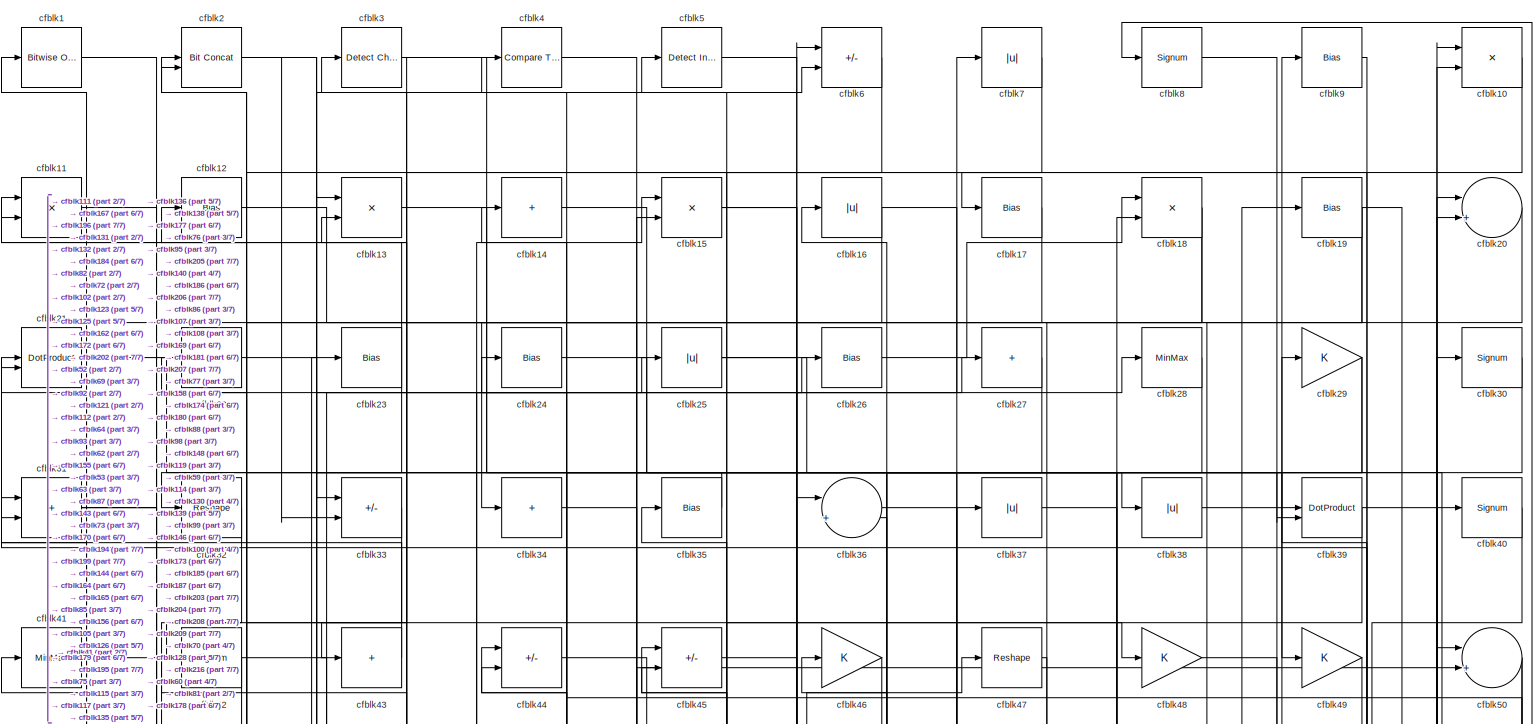
[diagram: root canvas - part 1/7, full width, top band]
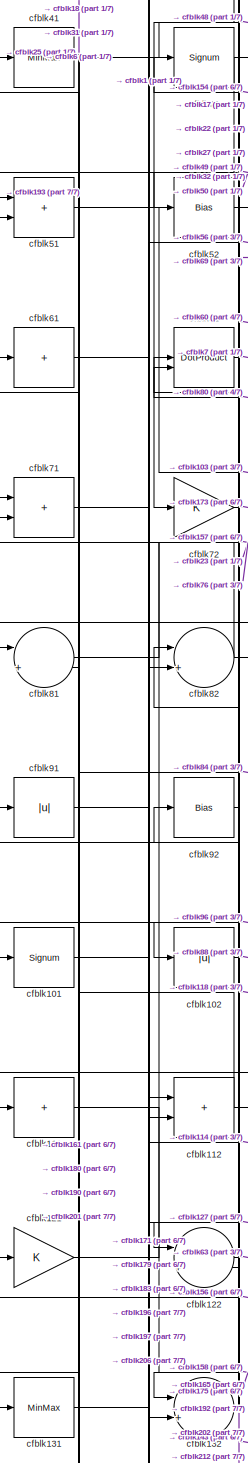
[diagram: root canvas - part 2/7, middle left region]
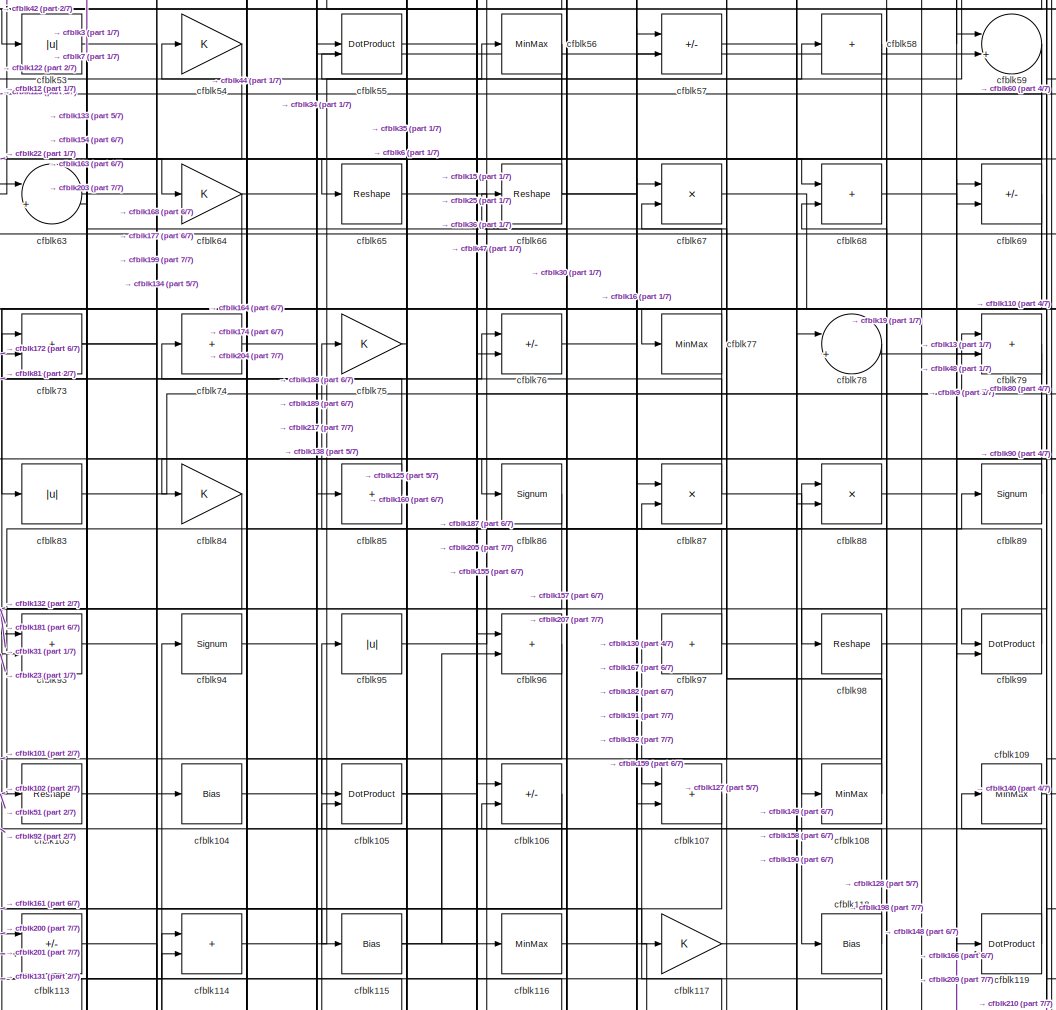
[diagram: root canvas - part 3/7, central region]
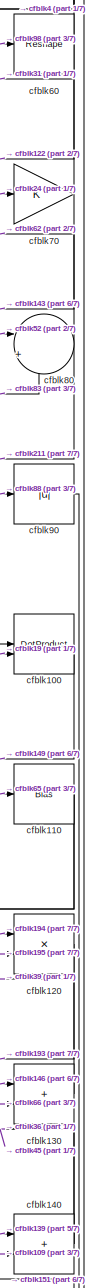
[diagram: root canvas - part 4/7, middle right region]
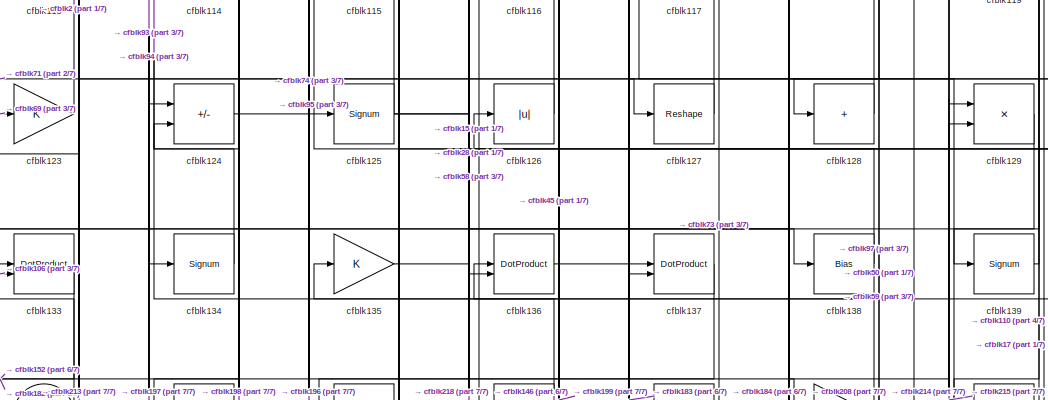
[diagram: root canvas - part 5/7, central region]
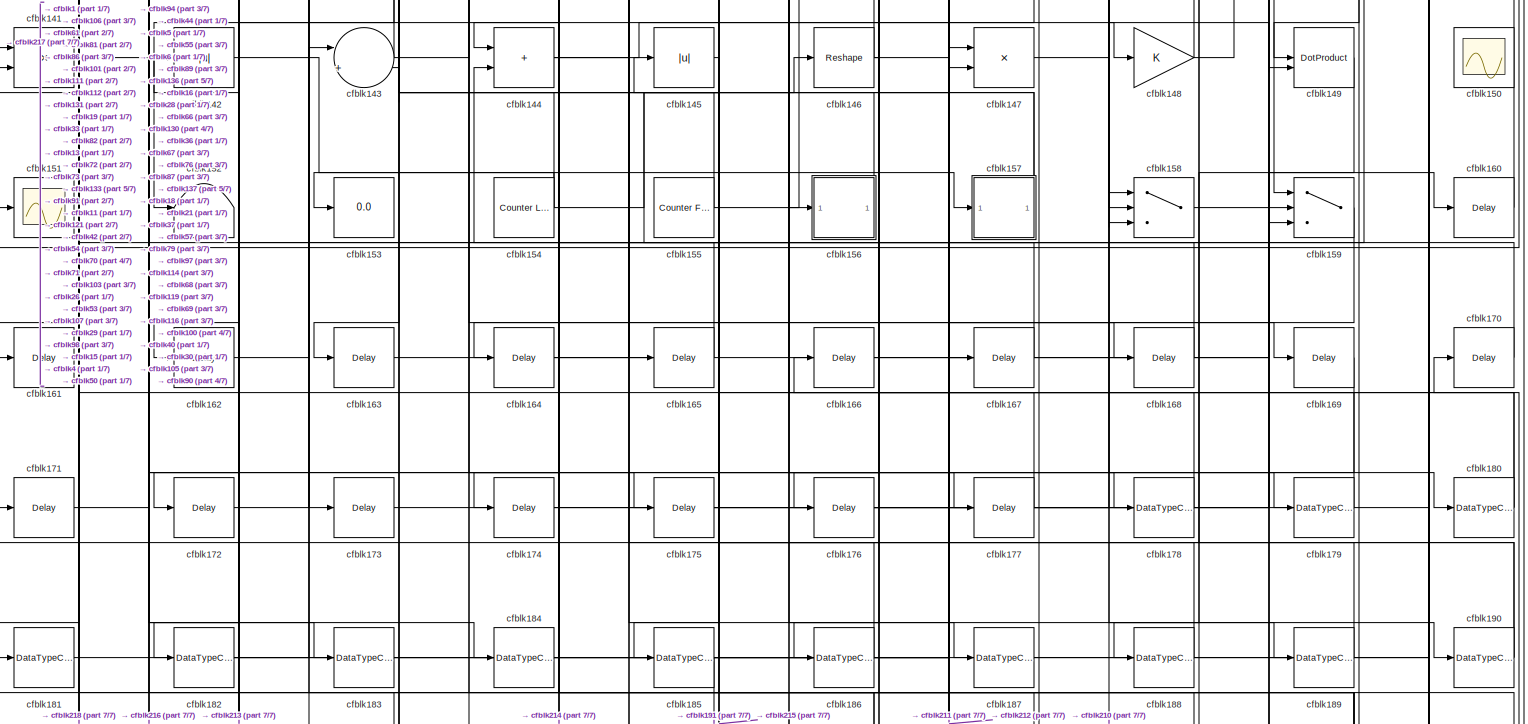
[diagram: root canvas - part 6/7, full width, bottom band]
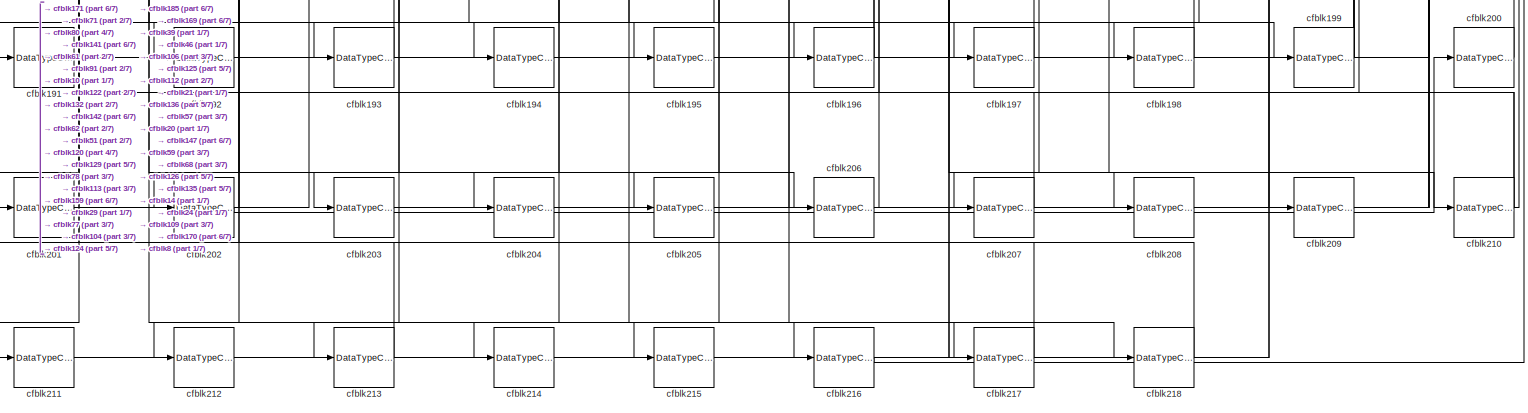
[diagram: root canvas - part 7/7, full width, bottom band]
MODEL slx_f94aa0b53dca
KIND model
CONFIG AbsTol = auto
CONFIG EnableMultiTasking = off
CONFIG FixedStep = auto
CONFIG MaxStep = auto
CONFIG MinStep = auto
CONFIG RelTol = 1e-3
CONFIG SampleTimeConstraint = Unconstrained
CONFIG SolverName = VariableStepAuto
CONFIG StartTime = 0.0
CONFIG StopTime = 10.0
BLOCK [Reference] cfblk1  REF=simulink/Logic and Bit
Operations/Bitwise
Operator
  LibrarySourceBlock = hdlsllib/Logic and Bit\nOperations/Bitwise\nOperator
  SourceBlock = simulink/Logic and Bit\nOperations/Bitwise\nOperator
  SourceType = Bitwise Operator
BLOCK [Product] cfblk10
  Inputs = */
  RndMeth = Zero
  SaturateOnIntegerOverflow = on
BLOCK [DotProduct] cfblk100
  OutDataTypeStr = Inherit: Inherit via internal rule
BLOCK [Signum] cfblk101
BLOCK [Abs] cfblk102
  SaturateOnIntegerOverflow = off
BLOCK [Reshape] cfblk103
BLOCK [Bias] cfblk104
  Bias = 0.0
  SaturateOnIntegerOverflow = off
BLOCK [DotProduct] cfblk105
  OutDataTypeStr = Inherit: Inherit via internal rule
BLOCK [Sum] cfblk106
  IconShape = rectangular
  Inputs = +-
BLOCK [Sum] cfblk107
  IconShape = rectangular
BLOCK [MinMax] cfblk108
BLOCK [MinMax] cfblk109
BLOCK [Product] cfblk11
  Inputs = */
  RndMeth = Zero
  SaturateOnIntegerOverflow = on
BLOCK [Bias] cfblk110
  Bias = 0.0
  SaturateOnIntegerOverflow = off
BLOCK [Sum] cfblk111
  IconShape = rectangular
  Inputs = +
BLOCK [Sum] cfblk112
  IconShape = rectangular
BLOCK [Sum] cfblk113
  IconShape = rectangular
  Inputs = +-
BLOCK [Sum] cfblk114
  IconShape = rectangular
BLOCK [Bias] cfblk115
  Bias = 0.0
  SaturateOnIntegerOverflow = off
BLOCK [MinMax] cfblk116
BLOCK [Gain] cfblk117
BLOCK [Bias] cfblk118
  Bias = 0.0
  SaturateOnIntegerOverflow = off
BLOCK [DotProduct] cfblk119
  OutDataTypeStr = Inherit: Inherit via internal rule
BLOCK [Bias] cfblk12
  Bias = 0.0
  SaturateOnIntegerOverflow = off
BLOCK [Product] cfblk120
  Inputs = */
  RndMeth = Zero
  SaturateOnIntegerOverflow = on
BLOCK [Gain] cfblk121
BLOCK [Sum] cfblk122
  Inputs = |++
BLOCK [Gain] cfblk123
BLOCK [Sum] cfblk124
  IconShape = rectangular
  Inputs = +-
BLOCK [Signum] cfblk125
BLOCK [Abs] cfblk126
  SaturateOnIntegerOverflow = off
BLOCK [Reshape] cfblk127
BLOCK [Sum] cfblk128
  IconShape = rectangular
  Inputs = +
BLOCK [Product] cfblk129
  Inputs = */
  RndMeth = Zero
  SaturateOnIntegerOverflow = on
BLOCK [Product] cfblk13
  Inputs = */
  RndMeth = Zero
  SaturateOnIntegerOverflow = on
BLOCK [Sum] cfblk130
  IconShape = rectangular
BLOCK [MinMax] cfblk131
BLOCK [Sum] cfblk132
  Inputs = |++
BLOCK [DotProduct] cfblk133
  OutDataTypeStr = Inherit: Inherit via internal rule
BLOCK [Signum] cfblk134
BLOCK [Gain] cfblk135
BLOCK [DotProduct] cfblk136
  OutDataTypeStr = Inherit: Inherit via internal rule
BLOCK [DotProduct] cfblk137
  OutDataTypeStr = Inherit: Inherit via internal rule
BLOCK [Bias] cfblk138
  Bias = 0.0
  SaturateOnIntegerOverflow = off
BLOCK [Signum] cfblk139
BLOCK [Sum] cfblk14
  IconShape = rectangular
  Inputs = +
BLOCK [Sum] cfblk140
  IconShape = rectangular
BLOCK [Product] cfblk141
  Inputs = */
  RndMeth = Zero
  SaturateOnIntegerOverflow = on
BLOCK [Abs] cfblk142
  SaturateOnIntegerOverflow = off
BLOCK [Sum] cfblk143
  Inputs = |++
BLOCK [Sum] cfblk144
  IconShape = rectangular
BLOCK [Abs] cfblk145
  SaturateOnIntegerOverflow = off
BLOCK [Reshape] cfblk146
BLOCK [Product] cfblk147
  Inputs = */
  RndMeth = Zero
  SaturateOnIntegerOverflow = on
BLOCK [Gain] cfblk148
BLOCK [DotProduct] cfblk149
  OutDataTypeStr = Inherit: Inherit via internal rule
BLOCK [Product] cfblk15
  Inputs = */
  RndMeth = Zero
  SaturateOnIntegerOverflow = on
BLOCK [Scope] cfblk150
  Floating = on
  NumInputPorts = 1
  ScopeSpecificationString = Simulink.scopes.TimeScopeBlockCfg('CurrentConfiguration', extmgr.ConfigurationSet(extmgr.Configuration('Core','General UI',true,'FigureColor',[0.156862745098039 0.156862745098039 0.156862745098039]),extmgr.Configuration('Core','Source UI',true),extmgr.Configuration('Sources','WiredSimulink',true,'DataLoggingVariableName','ScopeData1','DataLoggingSaveFormat','StructureWithTime','DataLoggingLimitDat...<+2713ch>
BLOCK [Scope] cfblk151
  Floating = off
  NumInputPorts = 1
  ScopeSpecificationString = Simulink.scopes.TimeScopeBlockCfg('CurrentConfiguration', extmgr.ConfigurationSet(extmgr.Configuration('Core','General UI',true),extmgr.Configuration('Core','Source UI',true),extmgr.Configuration('Sources','WiredSimulink',true,'DataLoggingVariableName','ScopeData2','DataLoggingSaveFormat','Array','DataLoggingLimitDataPoints',true,'DataLoggingDecimation','1'),extmgr.Configuration('Visuals','Time Do...<+868ch>
BLOCK [Terminator] cfblk152
BLOCK [Display] cfblk153
  Decimation = 1
BLOCK [Reference] cfblk154  REF=hdlsllib/Sources/Counter
Limited
  SourceBlock = hdlsllib/Sources/Counter\nLimited
  SourceType = Counter Limited
BLOCK [Reference] cfblk155  REF=hdlsllib/Sources/Counter
Free-Running
  SourceBlock = hdlsllib/Sources/Counter\nFree-Running
  SourceType = Counter Free-Running
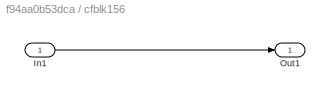
BLOCK [SubSystem] cfblk156
  LibrarySourceBlock = hdlsllib/Ports &\nSubsystems/Subsystem
BLOCK [Inport] cfblk156/In1
BLOCK [Outport] cfblk156/Out1
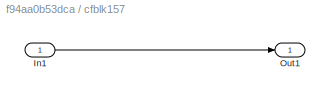
BLOCK [SubSystem] cfblk157
  LibrarySourceBlock = hdlsllib/Ports &\nSubsystems/Subsystem
BLOCK [Inport] cfblk157/In1
BLOCK [Outport] cfblk157/Out1
BLOCK [Switch] cfblk158
  InputSameDT = off
  SaturateOnIntegerOverflow = off
BLOCK [Switch] cfblk159
  InputSameDT = off
  SaturateOnIntegerOverflow = off
BLOCK [Abs] cfblk16
  SaturateOnIntegerOverflow = off
BLOCK [Delay] cfblk160
  InputPortMap = u0
  SampleTime = 1
BLOCK [Delay] cfblk161
  InputPortMap = u0
  SampleTime = 1
BLOCK [Delay] cfblk162
  InputPortMap = u0
  SampleTime = 1
BLOCK [Delay] cfblk163
  InputPortMap = u0
  SampleTime = 1
BLOCK [Delay] cfblk164
  InputPortMap = u0
  SampleTime = 1
BLOCK [Delay] cfblk165
  InputPortMap = u0
  SampleTime = 1
BLOCK [Delay] cfblk166
  InputPortMap = u0
  SampleTime = 1
BLOCK [Delay] cfblk167
  InputPortMap = u0
  SampleTime = 1
BLOCK [Delay] cfblk168
  InputPortMap = u0
  SampleTime = 1
BLOCK [Delay] cfblk169
  InputPortMap = u0
  SampleTime = 1
BLOCK [Bias] cfblk17
  Bias = 0.0
  SaturateOnIntegerOverflow = off
BLOCK [Delay] cfblk170
  InputPortMap = u0
  SampleTime = 1
BLOCK [Delay] cfblk171
  InputPortMap = u0
  SampleTime = 1
BLOCK [Delay] cfblk172
  InputPortMap = u0
  SampleTime = 1
BLOCK [Delay] cfblk173
  InputPortMap = u0
  SampleTime = 1
BLOCK [Delay] cfblk174
  InputPortMap = u0
  SampleTime = 1
BLOCK [Delay] cfblk175
  InputPortMap = u0
  SampleTime = 1
BLOCK [Delay] cfblk176
  InputPortMap = u0
  SampleTime = 1
BLOCK [Delay] cfblk177
  InputPortMap = u0
  SampleTime = 1
BLOCK [DataTypeConversion] cfblk178
  OutDataTypeStr = uint8
  RndMeth = Floor
  SaturateOnIntegerOverflow = off
BLOCK [DataTypeConversion] cfblk179
  OutDataTypeStr = uint8
  RndMeth = Floor
  SaturateOnIntegerOverflow = off
BLOCK [Product] cfblk18
  Inputs = */
  RndMeth = Zero
  SaturateOnIntegerOverflow = on
BLOCK [DataTypeConversion] cfblk180
  RndMeth = Floor
  SaturateOnIntegerOverflow = off
BLOCK [DataTypeConversion] cfblk181
  OutDataTypeStr = uint8
  RndMeth = Floor
  SaturateOnIntegerOverflow = off
BLOCK [DataTypeConversion] cfblk182
  RndMeth = Floor
  SaturateOnIntegerOverflow = off
BLOCK [DataTypeConversion] cfblk183
  OutDataTypeStr = uint8
  RndMeth = Floor
  SaturateOnIntegerOverflow = off
BLOCK [DataTypeConversion] cfblk184
  OutDataTypeStr = uint8
  RndMeth = Floor
  SaturateOnIntegerOverflow = off
BLOCK [DataTypeConversion] cfblk185
  RndMeth = Floor
  SaturateOnIntegerOverflow = off
BLOCK [DataTypeConversion] cfblk186
  OutDataTypeStr = uint8
  RndMeth = Floor
  SaturateOnIntegerOverflow = off
BLOCK [DataTypeConversion] cfblk187
  OutDataTypeStr = uint8
  RndMeth = Floor
  SaturateOnIntegerOverflow = off
BLOCK [DataTypeConversion] cfblk188
  OutDataTypeStr = uint8
  RndMeth = Floor
  SaturateOnIntegerOverflow = off
BLOCK [DataTypeConversion] cfblk189
  OutDataTypeStr = uint8
  RndMeth = Floor
  SaturateOnIntegerOverflow = off
BLOCK [Bias] cfblk19
  Bias = 0.0
  SaturateOnIntegerOverflow = off
BLOCK [DataTypeConversion] cfblk190
  RndMeth = Floor
  SaturateOnIntegerOverflow = off
BLOCK [DataTypeConversion] cfblk191
  OutDataTypeStr = uint8
  RndMeth = Floor
  SaturateOnIntegerOverflow = off
BLOCK [DataTypeConversion] cfblk192
  OutDataTypeStr = uint8
  RndMeth = Floor
  SaturateOnIntegerOverflow = off
BLOCK [DataTypeConversion] cfblk193
  OutDataTypeStr = uint8
  RndMeth = Floor
  SaturateOnIntegerOverflow = off
BLOCK [DataTypeConversion] cfblk194
  OutDataTypeStr = uint8
  RndMeth = Floor
  SaturateOnIntegerOverflow = off
BLOCK [DataTypeConversion] cfblk195
  OutDataTypeStr = uint8
  RndMeth = Floor
  SaturateOnIntegerOverflow = off
BLOCK [DataTypeConversion] cfblk196
  RndMeth = Floor
  SaturateOnIntegerOverflow = off
BLOCK [DataTypeConversion] cfblk197
  OutDataTypeStr = uint8
  RndMeth = Floor
  SaturateOnIntegerOverflow = off
BLOCK [DataTypeConversion] cfblk198
  OutDataTypeStr = uint8
  RndMeth = Floor
  SaturateOnIntegerOverflow = off
BLOCK [DataTypeConversion] cfblk199
  RndMeth = Floor
  SaturateOnIntegerOverflow = off
BLOCK [Reference] cfblk2  REF=hdlsllib/Logic and Bit
Operations/Bit Concat
  SourceBlock = hdlsllib/Logic and Bit\nOperations/Bit Concat
  SourceType = Bit Concat
BLOCK [Sum] cfblk20
  Inputs = |++
BLOCK [DataTypeConversion] cfblk200
  OutDataTypeStr = uint8
  RndMeth = Floor
  SaturateOnIntegerOverflow = off
BLOCK [DataTypeConversion] cfblk201
  OutDataTypeStr = uint8
  RndMeth = Floor
  SaturateOnIntegerOverflow = off
BLOCK [DataTypeConversion] cfblk202
  RndMeth = Floor
  SaturateOnIntegerOverflow = off
BLOCK [DataTypeConversion] cfblk203
  OutDataTypeStr = uint8
  RndMeth = Floor
  SaturateOnIntegerOverflow = off
BLOCK [DataTypeConversion] cfblk204
  OutDataTypeStr = uint8
  RndMeth = Floor
  SaturateOnIntegerOverflow = off
BLOCK [DataTypeConversion] cfblk205
  OutDataTypeStr = uint8
  RndMeth = Floor
  SaturateOnIntegerOverflow = off
BLOCK [DataTypeConversion] cfblk206
  OutDataTypeStr = uint8
  RndMeth = Floor
  SaturateOnIntegerOverflow = off
BLOCK [DataTypeConversion] cfblk207
  OutDataTypeStr = uint8
  RndMeth = Floor
  SaturateOnIntegerOverflow = off
BLOCK [DataTypeConversion] cfblk208
  OutDataTypeStr = uint8
  RndMeth = Floor
  SaturateOnIntegerOverflow = off
BLOCK [DataTypeConversion] cfblk209
  OutDataTypeStr = uint8
  RndMeth = Floor
  SaturateOnIntegerOverflow = off
BLOCK [DotProduct] cfblk21
  OutDataTypeStr = Inherit: Inherit via internal rule
BLOCK [DataTypeConversion] cfblk210
  RndMeth = Floor
  SaturateOnIntegerOverflow = off
BLOCK [DataTypeConversion] cfblk211
  OutDataTypeStr = uint8
  RndMeth = Floor
  SaturateOnIntegerOverflow = off
BLOCK [DataTypeConversion] cfblk212
  OutDataTypeStr = uint8
  RndMeth = Floor
  SaturateOnIntegerOverflow = off
BLOCK [DataTypeConversion] cfblk213
  OutDataTypeStr = uint8
  RndMeth = Floor
  SaturateOnIntegerOverflow = off
BLOCK [DataTypeConversion] cfblk214
  OutDataTypeStr = uint8
  RndMeth = Floor
  SaturateOnIntegerOverflow = off
BLOCK [DataTypeConversion] cfblk215
  OutDataTypeStr = uint8
  RndMeth = Floor
  SaturateOnIntegerOverflow = off
BLOCK [DataTypeConversion] cfblk216
  OutDataTypeStr = uint8
  RndMeth = Floor
  SaturateOnIntegerOverflow = off
BLOCK [DataTypeConversion] cfblk217
  OutDataTypeStr = uint8
  RndMeth = Floor
  SaturateOnIntegerOverflow = off
BLOCK [DataTypeConversion] cfblk218
  OutDataTypeStr = uint8
  RndMeth = Floor
  SaturateOnIntegerOverflow = off
BLOCK [Sum] cfblk22
  IconShape = rectangular
  Inputs = +
BLOCK [Bias] cfblk23
  Bias = 0.0
  SaturateOnIntegerOverflow = off
BLOCK [Bias] cfblk24
  Bias = 0.0
  SaturateOnIntegerOverflow = off
BLOCK [Abs] cfblk25
  SaturateOnIntegerOverflow = off
BLOCK [Bias] cfblk26
  Bias = 0.0
  SaturateOnIntegerOverflow = off
BLOCK [Sum] cfblk27
  IconShape = rectangular
  Inputs = +
BLOCK [MinMax] cfblk28
BLOCK [Gain] cfblk29
BLOCK [Reference] cfblk3  REF=simulink/Logic and Bit
Operations/Detect
Change
  LibrarySourceBlock = hdlsllib/Logic and Bit\nOperations/Detect\nChange
  SourceBlock = simulink/Logic and Bit\nOperations/Detect\nChange
  SourceType = Detect Change
BLOCK [Signum] cfblk30
BLOCK [Sum] cfblk31
  IconShape = rectangular
BLOCK [Reshape] cfblk32
BLOCK [Sum] cfblk33
  IconShape = rectangular
  Inputs = +-
BLOCK [Sum] cfblk34
  IconShape = rectangular
  Inputs = +
BLOCK [Bias] cfblk35
  Bias = 0.0
  SaturateOnIntegerOverflow = off
BLOCK [Sum] cfblk36
  Inputs = |++
BLOCK [Abs] cfblk37
  SaturateOnIntegerOverflow = off
BLOCK [Abs] cfblk38
  SaturateOnIntegerOverflow = off
BLOCK [DotProduct] cfblk39
  OutDataTypeStr = Inherit: Inherit via internal rule
BLOCK [Reference] cfblk4  REF=hdlsllib/Logic and Bit
Operations/Compare
To Zero
  SourceBlock = hdlsllib/Logic and Bit\nOperations/Compare\nTo Zero
  SourceType = Compare To Zero
BLOCK [Signum] cfblk40
BLOCK [MinMax] cfblk41
BLOCK [Signum] cfblk42
BLOCK [Sum] cfblk43
  IconShape = rectangular
  Inputs = +
BLOCK [Sum] cfblk44
  IconShape = rectangular
  Inputs = +-
BLOCK [Sum] cfblk45
  IconShape = rectangular
  Inputs = +-
BLOCK [Gain] cfblk46
BLOCK [Reshape] cfblk47
BLOCK [Gain] cfblk48
BLOCK [Gain] cfblk49
BLOCK [Reference] cfblk5  REF=simulink/Logic and Bit
Operations/Detect
Increase
  LibrarySourceBlock = hdlsllib/Logic and Bit\nOperations/Detect\nIncrease
  SourceBlock = simulink/Logic and Bit\nOperations/Detect\nIncrease
  SourceType = Detect Increase
BLOCK [Sum] cfblk50
  Inputs = |++
BLOCK [Sum] cfblk51
  IconShape = rectangular
BLOCK [Bias] cfblk52
  Bias = 0.0
  SaturateOnIntegerOverflow = off
BLOCK [Abs] cfblk53
  SaturateOnIntegerOverflow = off
BLOCK [Gain] cfblk54
BLOCK [DotProduct] cfblk55
  OutDataTypeStr = Inherit: Inherit via internal rule
BLOCK [MinMax] cfblk56
BLOCK [Sum] cfblk57
  IconShape = rectangular
  Inputs = +-
BLOCK [Sum] cfblk58
  IconShape = rectangular
  Inputs = +
BLOCK [Sum] cfblk59
  Inputs = |++
BLOCK [Sum] cfblk6
  IconShape = rectangular
  Inputs = +-
BLOCK [Reshape] cfblk60
BLOCK [Sum] cfblk61
  IconShape = rectangular
  Inputs = +
BLOCK [DotProduct] cfblk62
  OutDataTypeStr = Inherit: Inherit via internal rule
BLOCK [Sum] cfblk63
  Inputs = |++
BLOCK [Gain] cfblk64
BLOCK [Reshape] cfblk65
BLOCK [Reshape] cfblk66
BLOCK [Product] cfblk67
  Inputs = */
  RndMeth = Zero
  SaturateOnIntegerOverflow = on
BLOCK [Sum] cfblk68
  IconShape = rectangular
BLOCK [Sum] cfblk69
  IconShape = rectangular
  Inputs = +-
BLOCK [Abs] cfblk7
  SaturateOnIntegerOverflow = off
BLOCK [Gain] cfblk70
BLOCK [Sum] cfblk71
  IconShape = rectangular
BLOCK [Gain] cfblk72
BLOCK [Sum] cfblk73
  IconShape = rectangular
BLOCK [Sum] cfblk74
  IconShape = rectangular
  Inputs = +
BLOCK [Gain] cfblk75
BLOCK [Sum] cfblk76
  IconShape = rectangular
  Inputs = +-
BLOCK [MinMax] cfblk77
BLOCK [Sum] cfblk78
  Inputs = |++
BLOCK [Sum] cfblk79
  IconShape = rectangular
BLOCK [Signum] cfblk8
BLOCK [Sum] cfblk80
  Inputs = |++
BLOCK [Sum] cfblk81
  Inputs = |++
BLOCK [Sum] cfblk82
  Inputs = |++
BLOCK [Abs] cfblk83
  SaturateOnIntegerOverflow = off
BLOCK [Gain] cfblk84
BLOCK [Sum] cfblk85
  IconShape = rectangular
  Inputs = +
BLOCK [Signum] cfblk86
BLOCK [Product] cfblk87
  Inputs = */
  RndMeth = Zero
  SaturateOnIntegerOverflow = on
BLOCK [Product] cfblk88
  Inputs = */
  RndMeth = Zero
  SaturateOnIntegerOverflow = on
BLOCK [Signum] cfblk89
BLOCK [Bias] cfblk9
  Bias = 0.0
  SaturateOnIntegerOverflow = off
BLOCK [Abs] cfblk90
  SaturateOnIntegerOverflow = off
BLOCK [Abs] cfblk91
  SaturateOnIntegerOverflow = off
BLOCK [Bias] cfblk92
  Bias = 0.0
  SaturateOnIntegerOverflow = off
BLOCK [Sum] cfblk93
  IconShape = rectangular
BLOCK [Signum] cfblk94
BLOCK [Abs] cfblk95
  SaturateOnIntegerOverflow = off
BLOCK [Sum] cfblk96
  IconShape = rectangular
BLOCK [Sum] cfblk97
  IconShape = rectangular
  Inputs = +
BLOCK [Reshape] cfblk98
BLOCK [DotProduct] cfblk99
  OutDataTypeStr = Inherit: Inherit via internal rule
LINE cfblk100:1 -> cfblk149:1
LINE cfblk101:1 -> cfblk183:1
LINE cfblk102:1 -> cfblk88:1
LINE cfblk103:1 -> cfblk168:1
LINE cfblk104:1 -> cfblk217:1
NET cfblk105:1 -> cfblk116:1, cfblk79:1
NET cfblk106:1 -> cfblk133:2, cfblk161:1
LINE cfblk107:1 -> cfblk174:1
NET cfblk108:1 -> cfblk67:2, cfblk87:2
LINE cfblk109:1 -> cfblk140:2
LINE cfblk10:1 -> cfblk202:1
NET cfblk110:1 -> cfblk139:1, cfblk140:1
NET cfblk111:1 -> cfblk158:3, cfblk175:1
NET cfblk112:1 -> cfblk25:1, cfblk41:1
LINE cfblk113:1 -> cfblk199:1
LINE cfblk114:1 -> cfblk9:1
NET cfblk115:1 -> cfblk36:1, cfblk96:2
LINE cfblk116:1 -> cfblk159:1
LINE cfblk117:1 -> cfblk78:1
LINE cfblk118:1 -> cfblk92:1
LINE cfblk119:1 -> cfblk44:1
LINE cfblk11:1 -> cfblk184:1
LINE cfblk120:1 -> cfblk193:1
LINE cfblk121:1 -> cfblk23:1
NET cfblk122:1 -> cfblk212:1, cfblk63:1
LINE cfblk123:1 -> cfblk2:1
LINE cfblk124:1 -> cfblk196:1
NET cfblk125:1 -> cfblk218:1, cfblk2:2, cfblk58:1
LINE cfblk126:1 -> cfblk45:1
LINE cfblk127:1 -> cfblk73:1
LINE cfblk128:1 -> cfblk97:1
LINE cfblk129:1 -> cfblk213:1
LINE cfblk12:1 -> cfblk85:1
LINE cfblk130:1 -> cfblk39:1
NET cfblk131:1 -> cfblk114:2, cfblk179:1, cfblk27:1, cfblk56:1
LINE cfblk132:1 -> cfblk192:1
LINE cfblk133:1 -> cfblk152:1
LINE cfblk134:1 -> cfblk94:1
LINE cfblk135:1 -> cfblk28:1
LINE cfblk136:1 -> cfblk208:1
LINE cfblk137:1 -> cfblk182:1
LINE cfblk138:1 -> cfblk95:1
LINE cfblk139:1 -> cfblk17:1
LINE cfblk13:1 -> cfblk59:1
NET cfblk140:1 -> cfblk36:2, cfblk45:2
LINE cfblk141:1 -> cfblk216:1
LINE cfblk142:1 -> cfblk157:1
NET cfblk143:1 -> cfblk26:1, cfblk91:1
NET cfblk144:1 -> cfblk148:1, cfblk50:2
LINE cfblk145:1 -> cfblk185:1
NET cfblk146:1 -> cfblk130:1, cfblk136:1, cfblk176:1
LINE cfblk147:1 -> cfblk210:1
NET cfblk148:1 -> cfblk114:1, cfblk19:1
LINE cfblk149:1 -> cfblk188:1
LINE cfblk14:1 -> cfblk49:1
NET cfblk154:1 -> cfblk153:1, cfblk42:1, cfblk87:1
NET cfblk155:1 -> cfblk11:2, cfblk89:1
LINE cfblk156/In1:1 -> cfblk156/Out1:1
LINE cfblk156:1 -> cfblk121:1
LINE cfblk157/In1:1 -> cfblk157/Out1:1
NET cfblk157:1 -> cfblk66:1, cfblk71:1
LINE cfblk158:1 -> cfblk160:1
LINE cfblk159:1 -> cfblk214:1
NET cfblk15:1 -> cfblk117:1, cfblk138:1
LINE cfblk160:1 -> cfblk105:2
LINE cfblk161:1 -> cfblk71:2
LINE cfblk162:1 -> cfblk13:1
LINE cfblk163:1 -> cfblk69:1
LINE cfblk164:1 -> cfblk15:2
LINE cfblk165:1 -> cfblk82:1
LINE cfblk166:1 -> cfblk119:1
LINE cfblk167:1 -> cfblk1:1
LINE cfblk168:1 -> cfblk144:2
LINE cfblk169:1 -> cfblk215:1
NET cfblk16:1 -> cfblk108:1, cfblk63:2
LINE cfblk170:1 -> cfblk44:2
LINE cfblk171:1 -> cfblk112:2
LINE cfblk172:1 -> cfblk73:2
LINE cfblk173:1 -> cfblk50:1
LINE cfblk174:1 -> cfblk18:2
LINE cfblk175:1 -> cfblk159:3
LINE cfblk176:1 -> cfblk159:2
LINE cfblk177:1 -> cfblk6:1
LINE cfblk178:1 -> cfblk16:1
LINE cfblk179:1 -> cfblk5:1
LINE cfblk17:1 -> cfblk102:1
NET cfblk180:1 -> cfblk166:1, cfblk81:2
LINE cfblk181:1 -> cfblk37:1
NET cfblk182:1 -> cfblk143:1, cfblk67:1
LINE cfblk183:1 -> cfblk137:1
LINE cfblk184:1 -> cfblk137:2
NET cfblk185:1 -> cfblk191:1, cfblk40:1
LINE cfblk186:1 -> cfblk145:1
LINE cfblk187:1 -> cfblk30:1
LINE cfblk188:1 -> cfblk55:1
LINE cfblk189:1 -> cfblk55:2
NET cfblk18:1 -> cfblk111:1, cfblk34:1
NET cfblk190:1 -> cfblk61:1, cfblk68:2
LINE cfblk191:1 -> cfblk57:1
LINE cfblk192:1 -> cfblk57:2
LINE cfblk193:1 -> cfblk51:1
LINE cfblk194:1 -> cfblk120:1
LINE cfblk195:1 -> cfblk120:2
NET cfblk196:1 -> cfblk112:1, cfblk21:2
LINE cfblk197:1 -> cfblk124:1
LINE cfblk198:1 -> cfblk124:2
NET cfblk199:1 -> cfblk126:1, cfblk135:1, cfblk14:1, cfblk24:1
NET cfblk19:1 -> cfblk100:2, cfblk172:1, cfblk98:1
LINE cfblk1:1 -> cfblk82:2
LINE cfblk200:1 -> cfblk113:1
LINE cfblk201:1 -> cfblk113:2
NET cfblk202:1 -> cfblk200:1, cfblk62:2
LINE cfblk203:1 -> cfblk10:1
LINE cfblk204:1 -> cfblk10:2
LINE cfblk205:1 -> cfblk106:1
LINE cfblk206:1 -> cfblk46:1
LINE cfblk207:1 -> cfblk106:2
LINE cfblk208:1 -> cfblk20:1
LINE cfblk209:1 -> cfblk20:2
LINE cfblk20:1 -> cfblk207:1
NET cfblk210:1 -> cfblk109:1, cfblk170:1, cfblk171:1
LINE cfblk211:1 -> cfblk147:1
LINE cfblk212:1 -> cfblk147:2
LINE cfblk213:1 -> cfblk142:1
LINE cfblk214:1 -> cfblk129:1
LINE cfblk215:1 -> cfblk129:2
LINE cfblk216:1 -> cfblk8:1
LINE cfblk217:1 -> cfblk141:1
LINE cfblk218:1 -> cfblk141:2
LINE cfblk21:1 -> cfblk158:1
LINE cfblk22:1 -> cfblk64:1
NET cfblk23:1 -> cfblk11:1, cfblk93:2
LINE cfblk24:1 -> cfblk70:1
NET cfblk25:1 -> cfblk107:2, cfblk76:2
LINE cfblk26:1 -> cfblk18:1
LINE cfblk27:1 -> cfblk52:1
LINE cfblk28:1 -> cfblk186:1
NET cfblk29:1 -> cfblk144:1, cfblk194:1
NET cfblk2:1 -> cfblk33:1, cfblk33:2, cfblk38:1
LINE cfblk30:1 -> cfblk86:1
NET cfblk31:1 -> cfblk132:2, cfblk99:2
LINE cfblk32:1 -> cfblk72:1
LINE cfblk33:1 -> cfblk162:1
LINE cfblk34:1 -> cfblk69:2
LINE cfblk35:1 -> cfblk32:1
LINE cfblk36:1 -> cfblk169:1
LINE cfblk37:1 -> cfblk180:1
LINE cfblk38:1 -> cfblk29:1
NET cfblk39:1 -> cfblk100:1, cfblk195:1
NET cfblk3:1 -> cfblk43:1, cfblk88:2
LINE cfblk40:1 -> cfblk146:1
LINE cfblk41:1 -> cfblk48:1
NET cfblk42:1 -> cfblk51:2, cfblk96:1
LINE cfblk43:1 -> cfblk21:1
LINE cfblk44:1 -> cfblk156:1
LINE cfblk45:1 -> cfblk136:2
LINE cfblk46:1 -> cfblk205:1
LINE cfblk47:1 -> cfblk77:1
LINE cfblk48:1 -> cfblk119:2
LINE cfblk49:1 -> cfblk131:1
LINE cfblk4:1 -> cfblk165:1
NET cfblk50:1 -> cfblk128:1, cfblk81:1
LINE cfblk51:1 -> cfblk103:1
LINE cfblk52:1 -> cfblk80:1
LINE cfblk53:1 -> cfblk177:1
LINE cfblk54:1 -> cfblk163:1
LINE cfblk55:1 -> cfblk187:1
NET cfblk56:1 -> cfblk84:1, cfblk93:1
LINE cfblk57:1 -> cfblk190:1
LINE cfblk58:1 -> cfblk107:1
NET cfblk59:1 -> cfblk133:1, cfblk198:1
LINE cfblk5:1 -> cfblk178:1
NET cfblk60:1 -> cfblk122:2, cfblk4:1
LINE cfblk61:1 -> cfblk197:1
LINE cfblk62:1 -> cfblk7:1
LINE cfblk63:1 -> cfblk104:1
NET cfblk64:1 -> cfblk59:2, cfblk83:1
LINE cfblk65:1 -> cfblk110:1
NET cfblk66:1 -> cfblk130:2, cfblk65:1, cfblk68:1
LINE cfblk67:1 -> cfblk79:2
LINE cfblk68:1 -> cfblk209:1
NET cfblk69:1 -> cfblk122:1, cfblk123:1, cfblk12:1
LINE cfblk6:1 -> cfblk105:1
NET cfblk70:1 -> cfblk143:2, cfblk31:1
NET cfblk71:1 -> cfblk127:1, cfblk201:1
LINE cfblk72:1 -> cfblk173:1
NET cfblk73:1 -> cfblk115:1, cfblk15:1
LINE cfblk74:1 -> cfblk125:1
LINE cfblk75:1 -> cfblk35:1
LINE cfblk76:1 -> cfblk167:1
NET cfblk77:1 -> cfblk13:2, cfblk204:1
LINE cfblk78:1 -> cfblk203:1
LINE cfblk79:1 -> cfblk158:2
LINE cfblk7:1 -> cfblk53:1
NET cfblk80:1 -> cfblk211:1, cfblk62:1
LINE cfblk81:1 -> cfblk76:1
NET cfblk82:1 -> cfblk31:2, cfblk6:2
LINE cfblk83:1 -> cfblk80:2
LINE cfblk84:1 -> cfblk132:1
LINE cfblk85:1 -> cfblk74:1
LINE cfblk86:1 -> cfblk181:1
NET cfblk87:1 -> cfblk118:1, cfblk3:1
LINE cfblk88:1 -> cfblk90:1
LINE cfblk89:1 -> cfblk78:2
LINE cfblk8:1 -> cfblk39:2
LINE cfblk90:1 -> cfblk151:1
LINE cfblk91:1 -> cfblk206:1
LINE cfblk92:1 -> cfblk22:1
LINE cfblk93:1 -> cfblk134:1
LINE cfblk94:1 -> cfblk189:1
LINE cfblk95:1 -> cfblk47:1
LINE cfblk96:1 -> cfblk101:1
NET cfblk97:1 -> cfblk149:2, cfblk75:1
NET cfblk98:1 -> cfblk164:1, cfblk60:1
LINE cfblk99:1 -> cfblk54:1
LINE cfblk9:1 -> cfblk99:1
note: NET lines group one-source signal fan-out (src -> all destinations, sorted); 1:1 wires keep LINE
